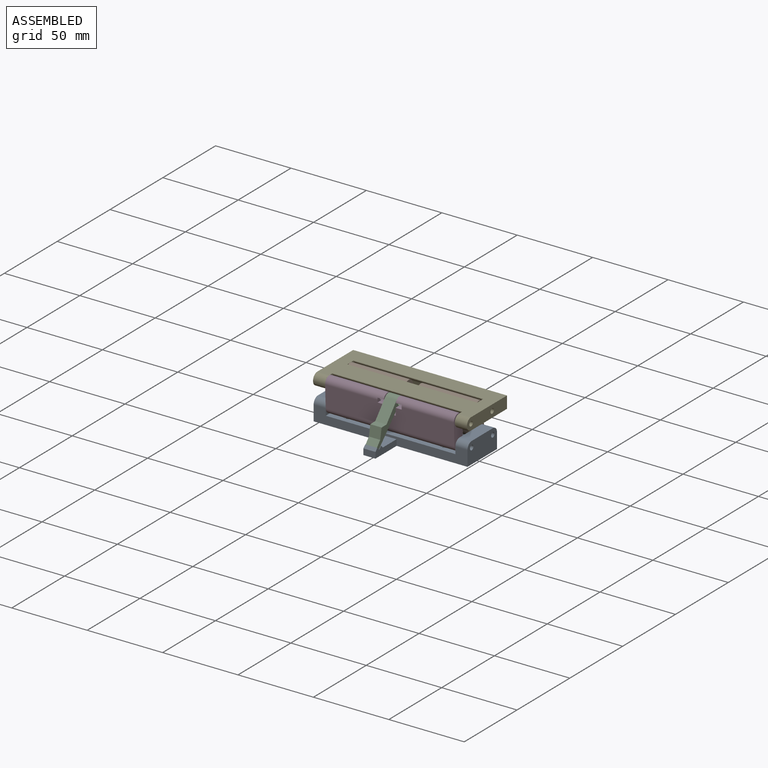
[diagram: assembled view]
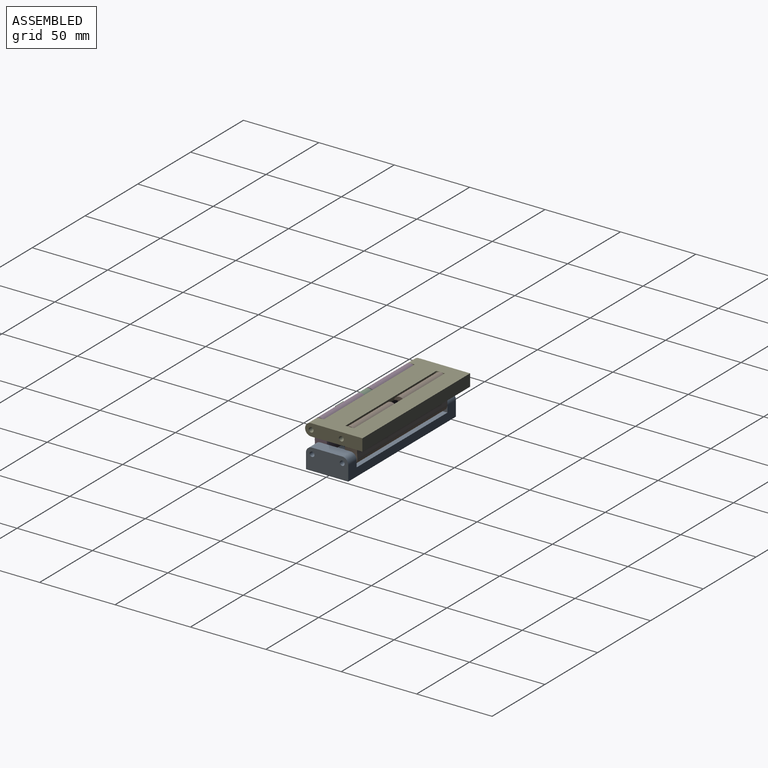
[diagram: assembled view, second angle]
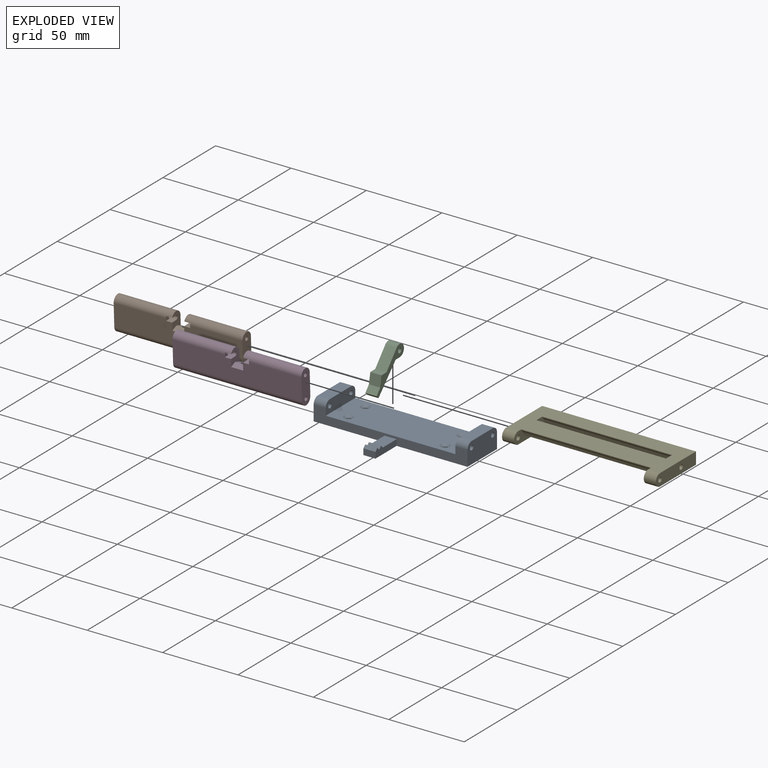
[diagram: exploded view]
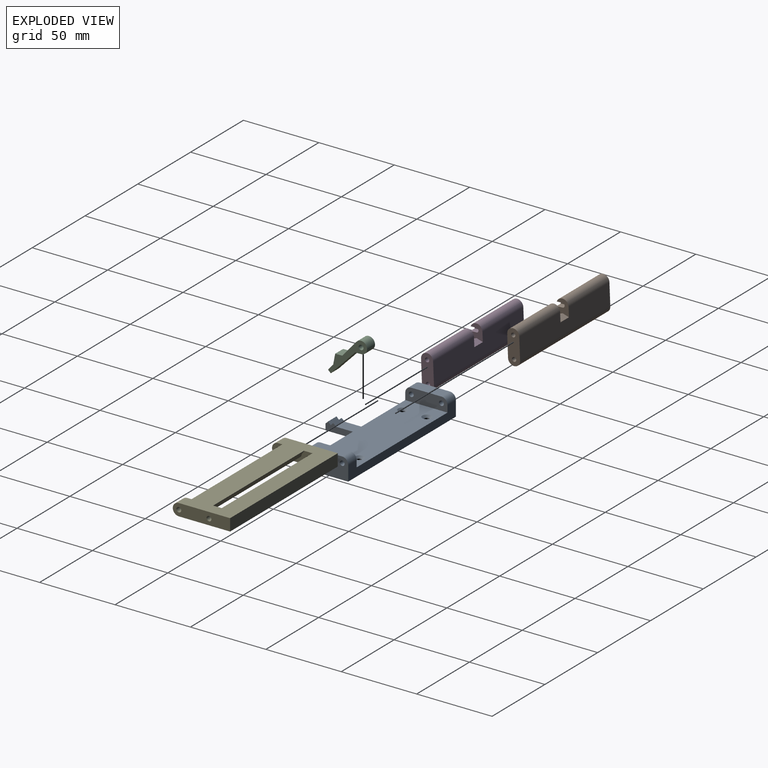
[diagram: exploded view, second angle]
ASSEMBLY  parts=5 mates=5
PART A: 34 faces, bbox 102x48x14 mm
  f0: cylinder r=1.6mm len=8mm, axis (-1,0,0), area 80.4mm2, adj f8,f17
  f1: cylinder r=1.6mm len=8mm, axis (-1,0,0), area 80.4mm2, adj f8,f17
  f2: plane 102x10mm, normal (0,-1,0), area 601mm2, adj f3,f4,f8,f14,f15,f16,f17,f20
  f3: cylinder r=4mm len=8mm, axis (-1,0,0), area 50.3mm2, adj f2,f7,f8,f17
  f4: plane 102x48mm, normal (0,0,-1), area 2981.8mm2, adj f2,f5,f8,f9,f15,f23,f24,f26
  f5: plane 102x10mm, normal (0,1,0), area 633mm2, adj f4,f6,f8,f16,f17,f21,f23,f25
  f6: cylinder r=4mm len=8mm, axis (-1,0,0), area 50.3mm2, adj f5,f7,f8,f17
  f7: plane 20x8mm, normal (0,0,1), area 160mm2, adj f3,f6,f8,f17
  f8: plane 28x14mm, normal (1,0,0), area 369mm2, adj f0,f1,f2,f3,f4,f5,f6,f7
  f9: plane 8x4mm, normal (0,-1,0), area 32mm2, adj f4,f10,f15,f24
  f10: plane 8x1.75mm, normal (0,-0.71,0.71), area 19.8mm2, adj f9,f11,f15,f24
  f11: plane 8x1.75mm, normal (0,0.71,0.71), area 19.8mm2, adj f10,f12,f15,f24
  f12: plane 8x1.75mm, normal (0,-0.71,0.71), area 19.8mm2, adj f11,f13,f15,f24
  f13: plane 8x1.75mm, normal (0,0.71,0.71), area 19.8mm2, adj f12,f14,f15,f24
  f14: plane 13x8mm, normal (0,0,1), area 104mm2, adj f2,f13,f15,f24
  f15: plane 20x5.75mm, normal (1,0,0), area 86.1mm2, adj f2,f4,f9,f10,f11,f12,f13,f14
  f16: plane 86x28mm, normal (0,0,1), area 2294.9mm2, adj f2,f5,f17,f25,f27,f29,f31,f33
  f17: plane 28x8.5mm, normal (-1,0,0), area 215mm2, adj f0,f1,f2,f3,f5,f6,f7,f16
  f18: cylinder r=1.6mm len=8mm, axis (1,0,0), area 80.4mm2, adj f23,f25
  f19: cylinder r=1.6mm len=8mm, axis (1,0,0), area 80.4mm2, adj f23,f25
  f20: cylinder r=4mm len=8mm, axis (1,0,0), area 50.3mm2, adj f2,f22,f23,f25
  f21: cylinder r=4mm len=8mm, axis (1,0,0), area 50.3mm2, adj f5,f22,f23,f25
  f22: plane 20x8mm, normal (0,0,1), area 160mm2, adj f20,f21,f23,f25
  f23: plane 28x14mm, normal (-1,0,0), area 369mm2, adj f2,f4,f5,f18,f19,f20,f21,f22
  f24: plane 20x5.75mm, normal (-1,0,0), area 86.1mm2, adj f2,f4,f9,f10,f11,f12,f13,f14
  f25: plane 28x8.5mm, normal (1,0,0), area 215mm2, adj f2,f5,f16,f18,f19,f20,f21,f22
  f26: cylinder r=1.65mm len=4.15mm, axis (0,0,1), area 43mm2, adj f4,f27
  f27: cone r=1.65mm half-angle=45deg, axis (0,0,1), area 27.9mm2, adj f16,f26
  f28: cylinder r=1.65mm len=4.15mm, axis (0,0,1), area 43mm2, adj f4,f29
  f29: cone r=1.65mm half-angle=45deg, axis (0,0,1), area 27.9mm2, adj f16,f28
  f30: cylinder r=1.65mm len=4.15mm, axis (0,0,1), area 43mm2, adj f4,f31
  f31: cone r=1.65mm half-angle=45deg, axis (0,0,1), area 27.9mm2, adj f16,f30
  f32: cylinder r=1.65mm len=4.15mm, axis (0,0,1), area 43mm2, adj f4,f33
  f33: cone r=1.65mm half-angle=45deg, axis (0,0,1), area 27.9mm2, adj f16,f32
PART B: 20 faces, bbox 85.4x8x22.5 mm
  f0: plane 10.24x8mm, normal (-1,0,0), area 55.1mm2, adj f1,f2,f4,f6,f8,f9,f10,f11
  f1: plane 85.4x14.5mm, normal (0,1,0), area 1188.3mm2, adj f0,f3,f6,f7,f8,f13,f15,f16
  f2: cylinder r=1.4mm len=38.7mm, axis (-1,0,0), area 322.8mm2, adj f0,f7,f10,f11,f12
  f3: cylinder r=4mm len=85.4mm, axis (-1,0,0), area 1073.2mm2, adj f1,f4,f7,f16
  f4: plane 85.4x14.5mm, normal (0,-1,0), area 1177.1mm2, adj f0,f3,f6,f7,f9,f10,f12,f13
  f5: cylinder r=1.4mm len=85.4mm, axis (-1,0,0), area 751.2mm2, adj f7,f16
  f6: cylinder r=4mm len=38.7mm, axis (-1,0,0), area 480.6mm2, adj f0,f1,f4,f7,f11,f12
  f7: plane 22.5x8mm, normal (1,0,0), area 154mm2, adj f1,f2,f3,f4,f5,f6
  f8: plane 8x4mm, normal (0,0.34,-0.94), area 34.1mm2, adj f0,f1,f9,f13
  f9: plane 8x4mm, normal (0,-0.34,-0.94), area 34.1mm2, adj f0,f4,f8,f13
  f10: plane 4x4mm, normal (0,0,-1), area 16mm2, adj f0,f2,f4,f12
  f11: plane 4x3.75mm, normal (0,0,1), area 15mm2, adj f0,f2,f6,f12
  f12: plane 4x2.8mm, normal (-1,0,0), area 8mm2, adj f2,f4,f6,f10,f11
  f13: plane 10.24x8mm, normal (1,0,0), area 55.1mm2, adj f1,f4,f8,f9,f14,f15,f17,f18
  f14: cylinder r=1.4mm len=38.7mm, axis (1,0,0), area 322.8mm2, adj f13,f16,f17,f18,f19
  f15: cylinder r=4mm len=38.7mm, axis (1,0,0), area 480.6mm2, adj f1,f4,f13,f16,f18,f19
  f16: plane 22.5x8mm, normal (-1,0,0), area 154mm2, adj f1,f3,f4,f5,f14,f15
  f17: plane 4x4mm, normal (0,0,-1), area 16mm2, adj f4,f13,f14,f19
  f18: plane 4x3.75mm, normal (0,0,1), area 15mm2, adj f13,f14,f15,f19
  f19: plane 4x2.8mm, normal (1,0,0), area 8mm2, adj f4,f14,f15,f17,f18
PART C: 11 faces, bbox 7.5x26.3x24.5 mm
  f0: plane 7.5x4mm, normal (0,0,-1), area 30mm2, adj f1,f7,f9,f10
  f1: cylinder r=4mm len=8mm, axis (-1,0,0), area 119.4mm2, adj f0,f2,f9,f10
  f2: plane 10.71x9.64mm, normal (0,-0.74,0.67), area 108.1mm2, adj f1,f3,f9,f10
  f3: plane 7.5x4.71mm, normal (0,0,1), area 35.3mm2, adj f2,f4,f9,f10
  f4: plane 7.5x6.85mm, normal (0,-0.98,0.21), area 52.5mm2, adj f3,f5,f9,f10
  f5: plane 7.5x3.87mm, normal (0,-0.74,0.67), area 39mm2, adj f4,f6,f9,f10
  f6: plane 7.5x1.75mm, normal (0,-0.71,-0.71), area 18.6mm2, adj f5,f7,f9,f10
  f7: plane 16.5x16.5mm, normal (0,0.71,-0.71), area 175mm2, adj f0,f6,f9,f10
  f8: cylinder r=1.6mm len=7.5mm, axis (-1,0,0), area 75.4mm2, adj f9,f10
  f9: plane 26.25x24.5mm, normal (1,0,0), area 141.4mm2, adj f0,f1,f2,f3,f4,f5,f6,f7
  f10: plane 26.25x24.5mm, normal (-1,0,0), area 141.4mm2, adj f0,f1,f2,f3,f4,f5,f6,f7
PART D: same geometry as B
PART E: 23 faces, bbox 102x38x8 mm
  f0: plane 102x34mm, normal (0,0,1), area 2738.3mm2, adj f3,f5,f6,f7,f13,f14,f17,f20
  f1: cylinder r=1.6mm len=8mm, axis (-1,0,0), area 80.4mm2, adj f6,f17
  f2: cylinder r=1.6mm len=8mm, axis (-1,0,0), area 80.4mm2, adj f6,f17
  f3: cylinder r=4mm len=8mm, axis (-1,0,0), area 100.5mm2, adj f0,f4,f6,f17
  f4: plane 102x34mm, normal (0,0,-1), area 1211mm2, adj f3,f5,f6,f16,f17,f20,f21,f22
  f5: plane 102x8mm, normal (0,1,0), area 816mm2, adj f0,f4,f6,f21
  f6: plane 38x8mm, normal (1,0,0), area 281mm2, adj f0,f1,f2,f3,f4,f5
  f7: plane 86x0.5mm, normal (0,-1,0), area 43mm2, adj f0,f8,f17,f22
  f8: cylinder r=4.5mm len=86mm, axis (-1,0,0), area 209.8mm2, adj f7,f9,f17,f22
  f9: plane 86x1.54mm, normal (0,-0.94,-0.34), area 140.9mm2, adj f8,f10,f17,f22
  f10: plane 86x10.42mm, normal (0,0,-1), area 896.3mm2, adj f9,f11,f17,f22
  f11: plane 86x1.54mm, normal (0,0.94,-0.34), area 140.9mm2, adj f10,f12,f17,f22
  f12: cylinder r=4.5mm len=86mm, axis (-1,0,0), area 209.8mm2, adj f11,f13,f17,f22
  f13: plane 86x0.5mm, normal (0,1,0), area 43mm2, adj f0,f12,f17,f22
  f14: plane 86x0.5mm, normal (0,-1,0), area 43mm2, adj f0,f15,f17,f22
  f15: cylinder r=4.5mm len=86mm, axis (-1,0,0), area 209.8mm2, adj f14,f16,f17,f22
  f16: plane 86x5.54mm, normal (0,-0.94,-0.34), area 506.9mm2, adj f4,f15,f17,f22
  f17: plane 30.24x8mm, normal (-1,0,0), area 157.7mm2, adj f0,f1,f2,f3,f4,f7,f8,f9
  f18: cylinder r=1.6mm len=8mm, axis (1,0,0), area 80.4mm2, adj f21,f22
  f19: cylinder r=1.6mm len=8mm, axis (1,0,0), area 80.4mm2, adj f21,f22
  f20: cylinder r=4mm len=8mm, axis (1,0,0), area 100.5mm2, adj f0,f4,f21,f22
  f21: plane 38x8mm, normal (-1,0,0), area 281mm2, adj f0,f4,f5,f18,f19,f20
  f22: plane 30.24x8mm, normal (1,0,0), area 157.7mm2, adj f0,f4,f7,f8,f9,f10,f11,f12
PLACE A t=(0,1.29,7)mm
PLACE B rot(axis=(0,-1,-0.02),180deg) t=(-0.3,11,17.24)mm
PLACE C rot(axis=(1,0,0),1deg) t=(-0.05,1.02,7.17)mm
PLACE D rot(axis=(0,-1,-0.02),180deg) t=(-0.3,-9,17.24)mm
PLACE E t=(0,0.71,24.49)mm
MATE revolute C.f1 <-> D.f2  axis (-1,0,0) through (3.7,-9.29,24.49)mm
MATE revolute D.f6 <-> E.f8  axis (-1,0,0) through (-43,-9.29,24.49)mm
MATE revolute E.f2 <-> B.f2  axis (1,0,0) through (-43,10.71,24.49)mm
MATE revolute D.f5 <-> A.f0  axis (-1,0,0) through (-43,-8.71,10)mm
MATE revolute B.f3 <-> A.f1  axis (-1,0,0) through (-43,11.29,10)mm
